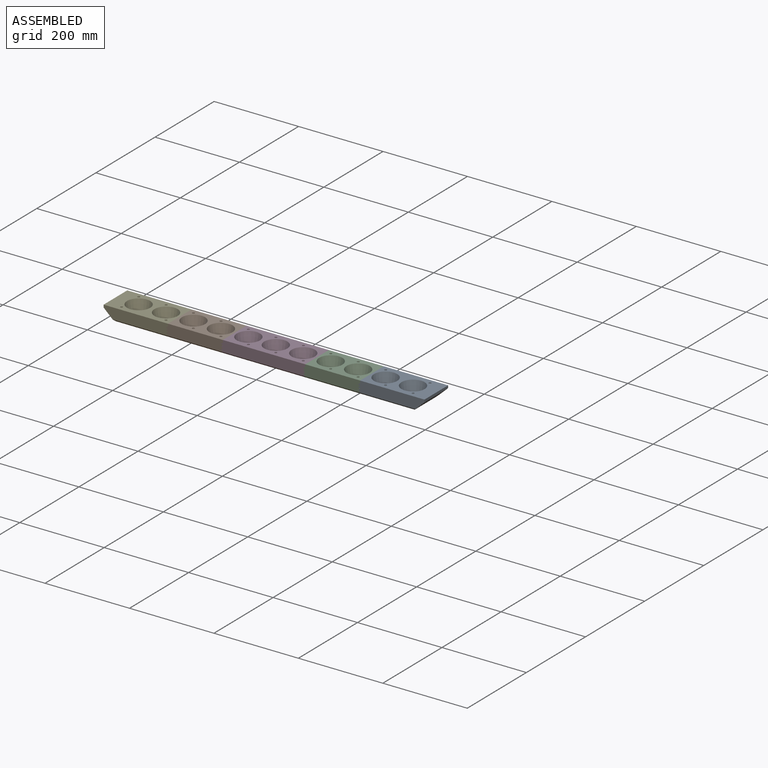
[diagram: assembled view]
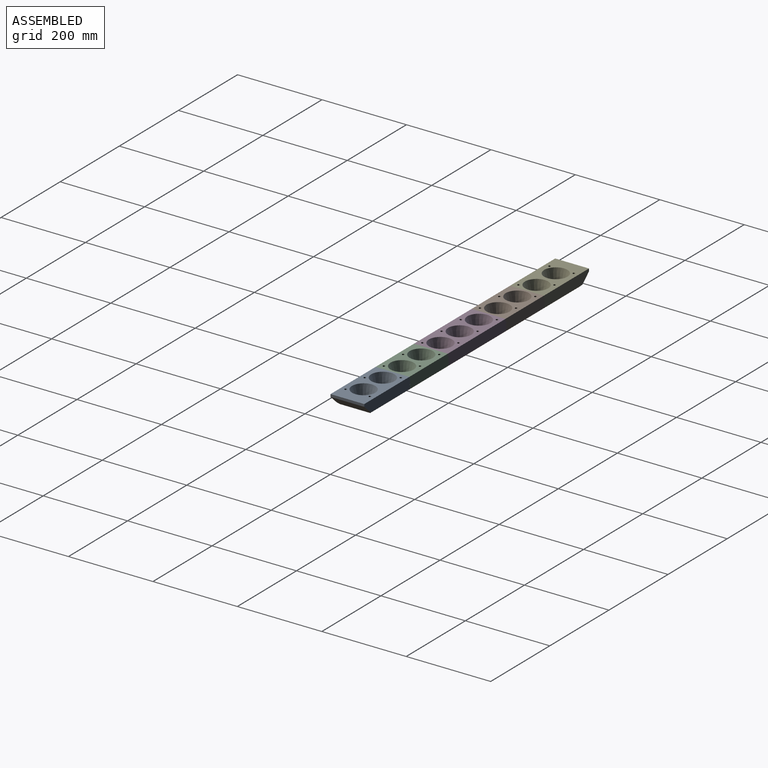
[diagram: assembled view, second angle]
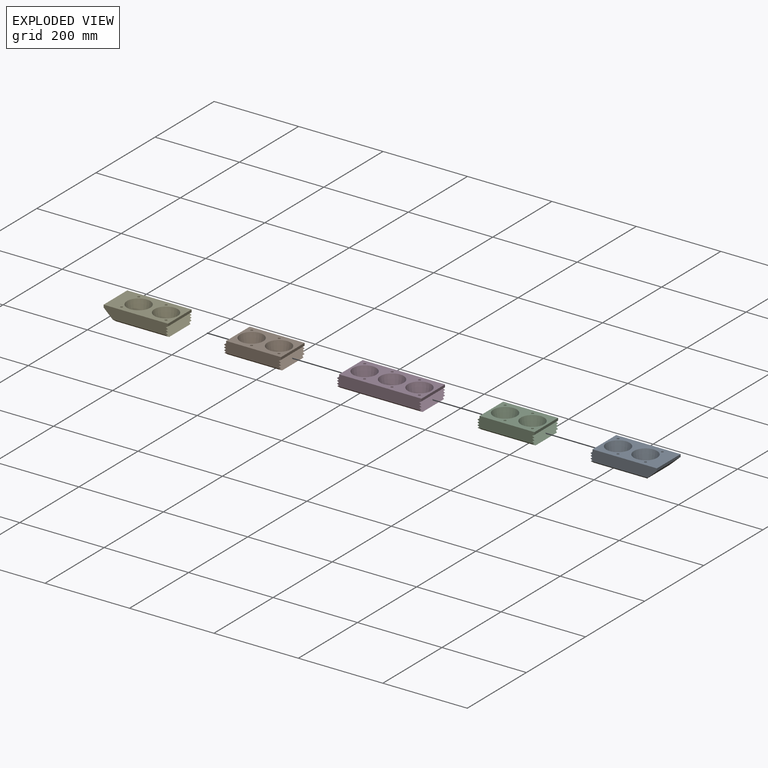
[diagram: exploded view]
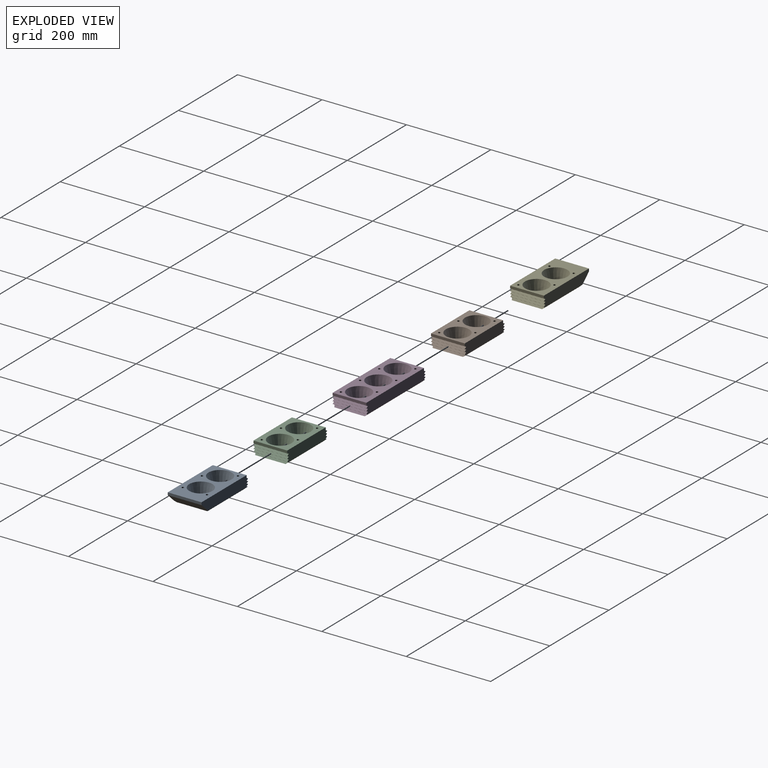
[diagram: exploded view, second angle]
ASSEMBLY  parts=5 mates=4
PART A: 34 faces, bbox 157.5x80x30 mm
  f0: plane 80x0.07mm, normal (1,0,0), area 5.8mm2, adj f3,f4,f29,f30
  f1: plane 80x0.07mm, normal (1,0,0), area 5.8mm2, adj f3,f4,f27,f28
  f2: plane 80x0.13mm, normal (1,0,0), area 10.8mm2, adj f3,f4,f25,f26
  f3: plane 157.5x26mm, normal (0,-1,0), area 3798.2mm2, adj f0,f1,f2,f5,f6,f7,f23,f24
  f4: plane 157.5x26mm, normal (0,1,0), area 3798.2mm2, adj f0,f1,f2,f5,f6,f7,f23,f24
  f5: plane 80x6mm, normal (1,0,0), area 480mm2, adj f3,f4,f6,f24
  f6: plane 152.5x80mm, normal (0,0,1), area 7353.3mm2, adj f3,f4,f5,f7,f9,f10,f11,f14
  f7: plane 80x6mm, normal (-1,0,0), area 480mm2, adj f3,f4,f6,f23
  f8: plane 126.75x72mm, normal (0,0,-1), area 6314.1mm2, adj f9,f10,f13,f16,f19,f22,f23,f31
  f9: cone r=20mm half-angle=14deg, axis (0,0,1), area 4614.5mm2, adj f6,f8
  f10: cone r=20mm half-angle=14deg, axis (0,0,1), area 4614.5mm2, adj f6,f8
  f11: cylinder r=2.75mm len=23mm, axis (0,0,-1), area 397.4mm2, adj f6,f12
  f12: plane 9.75x9.75mm, normal (0,0,-1), area 50.9mm2, adj f11,f13
  f13: cylinder r=4.88mm len=9.75mm, axis (0,0,-1), area 214.4mm2, adj f8,f12
  f14: cylinder r=2.75mm len=23mm, axis (0,0,-1), area 397.4mm2, adj f6,f15
  f15: plane 9.75x9.75mm, normal (0,0,-1), area 50.9mm2, adj f14,f16
  f16: cylinder r=4.88mm len=9.75mm, axis (0,0,-1), area 214.4mm2, adj f8,f15
  f17: cylinder r=2.75mm len=23mm, axis (0,0,-1), area 397.4mm2, adj f6,f18
  f18: plane 9.75x9.75mm, normal (0,0,-1), area 50.9mm2, adj f17,f19
  f19: cylinder r=4.88mm len=9.75mm, axis (0,0,-1), area 214.4mm2, adj f8,f18
  f20: cylinder r=2.75mm len=23mm, axis (0,0,-1), area 397.4mm2, adj f6,f21
  f21: plane 9.75x9.75mm, normal (0,0,-1), area 50.9mm2, adj f20,f22
  f22: cylinder r=4.88mm len=9.75mm, axis (0,0,-1), area 214.4mm2, adj f8,f21
  f23: plane 80x25.75mm, normal (-0.68,0,-0.73), area 2792.6mm2, adj f3,f4,f7,f8,f32,f33
  f24: plane 80x5mm, normal (0.53,0,0.85), area 470.6mm2, adj f3,f4,f5,f25
  f25: plane 80x5mm, normal (0.49,0,-0.87), area 459.7mm2, adj f2,f3,f4,f24
  f26: plane 80x5mm, normal (0.49,0,0.87), area 459.7mm2, adj f2,f3,f4,f27
  f27: plane 80x5mm, normal (0.51,0,-0.86), area 465mm2, adj f1,f3,f4,f26
  f28: plane 80x5mm, normal (0.51,0,0.86), area 465mm2, adj f1,f3,f4,f29
  f29: plane 80x5mm, normal (0.51,0,-0.86), area 465mm2, adj f0,f3,f4,f28
  f30: plane 80x5mm, normal (0.51,0,0.86), area 463.4mm2, adj f0,f3,f4,f31,f32,f33
  f31: plane 78.2x5mm, normal (0.53,0,-0.85), area 441.8mm2, adj f8,f30,f32,f33
  f32: plane 136.04x4mm, normal (0,0.71,-0.71), area 745.5mm2, adj f4,f8,f23,f30,f31
  f33: plane 136.04x4mm, normal (0,-0.71,-0.71), area 745.5mm2, adj f3,f8,f23,f30,f31
PART B: 38 faces, bbox 135x80x30 mm
  f0: plane 135x26mm, normal (0,-1,0), area 3380mm2, adj f2,f3,f20,f21,f22,f23,f24,f25
  f1: plane 135x26mm, normal (0,1,0), area 3380mm2, adj f2,f3,f20,f21,f22,f23,f24,f25
  f2: plane 80x6mm, normal (1,0,0), area 480mm2, adj f0,f1,f3,f35
  f3: plane 130x80mm, normal (0,0,1), area 5553.3mm2, adj f0,f1,f2,f5,f6,f7,f10,f13
  f4: plane 130x72mm, normal (0,0,-1), area 6548.1mm2, adj f5,f6,f9,f12,f15,f18,f19,f28
  f5: cone r=20mm half-angle=14deg, axis (0,0,1), area 4614.5mm2, adj f3,f4
  f6: cone r=20mm half-angle=14deg, axis (0,0,1), area 4614.5mm2, adj f3,f4
  f7: cylinder r=2.75mm len=23mm, axis (0,0,-1), area 397.4mm2, adj f3,f8
  f8: plane 9.75x9.75mm, normal (0,0,-1), area 50.9mm2, adj f7,f9
  f9: cylinder r=4.88mm len=9.75mm, axis (0,0,-1), area 214.4mm2, adj f4,f8
  f10: cylinder r=2.75mm len=23mm, axis (0,0,-1), area 397.4mm2, adj f3,f11
  f11: plane 9.75x9.75mm, normal (0,0,-1), area 50.9mm2, adj f10,f12
  f12: cylinder r=4.88mm len=9.75mm, axis (0,0,-1), area 214.4mm2, adj f4,f11
  f13: cylinder r=2.75mm len=23mm, axis (0,0,-1), area 397.4mm2, adj f3,f14
  f14: plane 9.75x9.75mm, normal (0,0,-1), area 50.9mm2, adj f13,f15
  f15: cylinder r=4.88mm len=9.75mm, axis (0,0,-1), area 214.4mm2, adj f4,f14
  f16: cylinder r=2.75mm len=23mm, axis (0,0,-1), area 397.4mm2, adj f3,f17
  f17: plane 9.75x9.75mm, normal (0,0,-1), area 50.9mm2, adj f16,f18
  f18: cylinder r=4.88mm len=9.75mm, axis (0,0,-1), area 214.4mm2, adj f4,f17
  f19: plane 78x5mm, normal (0.51,0,0.86), area 437.3mm2, adj f4,f20,f36,f37
  f20: plane 80x5mm, normal (0.51,0,-0.86), area 464.5mm2, adj f0,f1,f19,f23,f36,f37
  f21: plane 80x5mm, normal (0.51,0,0.86), area 466.5mm2, adj f0,f1,f22,f24
  f22: plane 80x5mm, normal (0.51,0,-0.86), area 466.5mm2, adj f0,f1,f21,f34
  f23: plane 80x5mm, normal (0.51,0,0.86), area 466.5mm2, adj f0,f1,f20,f24
  f24: plane 80x5mm, normal (0.51,0,-0.86), area 466.5mm2, adj f0,f1,f21,f23
  f25: plane 80x5mm, normal (-0.51,0,-0.86), area 466.5mm2, adj f0,f1,f26,f33
  f26: plane 80x5mm, normal (-0.51,0,0.86), area 466.5mm2, adj f0,f1,f25,f27
  f27: plane 80x6mm, normal (-1,0,0), area 480mm2, adj f0,f1,f3,f26
  f28: plane 78x5mm, normal (-0.51,0,-0.86), area 437.3mm2, adj f4,f29,f36,f37
  f29: plane 80x5mm, normal (-0.51,0,0.86), area 464.5mm2, adj f0,f1,f28,f30,f36,f37
  f30: plane 80x5mm, normal (-0.51,0,-0.86), area 466.5mm2, adj f0,f1,f29,f31
  f31: plane 80x5mm, normal (-0.51,0,0.86), area 466.5mm2, adj f0,f1,f30,f32
  f32: plane 80x5mm, normal (-0.51,0,-0.86), area 466.5mm2, adj f0,f1,f31,f33
  f33: plane 80x5mm, normal (-0.51,0,0.86), area 466.5mm2, adj f0,f1,f25,f32
  f34: plane 80x5mm, normal (0.51,0,0.86), area 466.5mm2, adj f0,f1,f22,f35
  f35: plane 80x5mm, normal (0.51,0,-0.86), area 466.5mm2, adj f0,f1,f2,f34
  f36: plane 135x4mm, normal (0,0.71,-0.71), area 735.4mm2, adj f1,f4,f19,f20,f28,f29
  f37: plane 135x4mm, normal (0,-0.71,-0.71), area 735.4mm2, adj f0,f4,f19,f20,f28,f29
PART C: same geometry as B
PART D: 45 faces, bbox 200x80x30 mm
  f0: plane 200x26mm, normal (0,-1,0), area 5070mm2, adj f2,f3,f27,f28,f29,f30,f31,f32
  f1: plane 200x26mm, normal (0,1,0), area 5070mm2, adj f2,f3,f27,f28,f29,f30,f31,f32
  f2: plane 80x6mm, normal (1,0,0), area 480mm2, adj f0,f1,f3,f42
  f3: plane 195x80mm, normal (0,0,1), area 8330mm2, adj f0,f1,f2,f5,f6,f7,f8,f11
  f4: plane 195x72mm, normal (0,0,-1), area 9822.1mm2, adj f5,f6,f7,f10,f13,f16,f19,f22
  f5: cone r=20mm half-angle=14deg, axis (0,0,1), area 4614.5mm2, adj f3,f4
  f6: cone r=20mm half-angle=14deg, axis (0,0,1), area 4614.5mm2, adj f3,f4
  f7: cone r=20mm half-angle=14deg, axis (0,0,1), area 4614.5mm2, adj f3,f4
  f8: cylinder r=2.75mm len=23mm, axis (0,0,-1), area 397.4mm2, adj f3,f9
  f9: plane 9.75x9.75mm, normal (0,0,-1), area 50.9mm2, adj f8,f10
  f10: cylinder r=4.88mm len=9.75mm, axis (0,0,-1), area 214.4mm2, adj f4,f9
  f11: cylinder r=2.75mm len=23mm, axis (0,0,-1), area 397.4mm2, adj f3,f12
  f12: plane 9.75x9.75mm, normal (0,0,-1), area 50.9mm2, adj f11,f13
  f13: cylinder r=4.88mm len=9.75mm, axis (0,0,-1), area 214.4mm2, adj f4,f12
  f14: cylinder r=2.75mm len=23mm, axis (0,0,-1), area 397.4mm2, adj f3,f15
  f15: plane 9.75x9.75mm, normal (0,0,-1), area 50.9mm2, adj f14,f16
  f16: cylinder r=4.88mm len=9.75mm, axis (0,0,-1), area 214.4mm2, adj f4,f15
  f17: cylinder r=2.75mm len=23mm, axis (0,0,-1), area 397.4mm2, adj f3,f18
  f18: plane 9.75x9.75mm, normal (0,0,-1), area 50.9mm2, adj f17,f19
  f19: cylinder r=4.88mm len=9.75mm, axis (0,0,-1), area 214.4mm2, adj f4,f18
  f20: cylinder r=2.75mm len=23mm, axis (0,0,-1), area 397.4mm2, adj f3,f21
  f21: plane 9.75x9.75mm, normal (0,0,-1), area 50.9mm2, adj f20,f22
  f22: cylinder r=4.88mm len=9.75mm, axis (0,0,-1), area 214.4mm2, adj f4,f21
  f23: cylinder r=2.75mm len=23mm, axis (0,0,-1), area 397.4mm2, adj f3,f24
  f24: plane 9.75x9.75mm, normal (0,0,-1), area 50.9mm2, adj f23,f25
  f25: cylinder r=4.88mm len=9.75mm, axis (0,0,-1), area 214.4mm2, adj f4,f24
  f26: plane 78x5mm, normal (0.51,0,0.86), area 437.3mm2, adj f4,f27,f43,f44
  f27: plane 80x5mm, normal (0.51,0,-0.86), area 464.5mm2, adj f0,f1,f26,f30,f43,f44
  f28: plane 80x5mm, normal (0.51,0,0.86), area 466.5mm2, adj f0,f1,f29,f31
  f29: plane 80x5mm, normal (0.51,0,-0.86), area 466.5mm2, adj f0,f1,f28,f41
  f30: plane 80x5mm, normal (0.51,0,0.86), area 466.5mm2, adj f0,f1,f27,f31
  f31: plane 80x5mm, normal (0.51,0,-0.86), area 466.5mm2, adj f0,f1,f28,f30
  f32: plane 80x5mm, normal (-0.51,0,-0.86), area 466.5mm2, adj f0,f1,f33,f40
  f33: plane 80x5mm, normal (-0.51,0,0.86), area 466.5mm2, adj f0,f1,f32,f34
  f34: plane 80x6mm, normal (-1,0,0), area 480mm2, adj f0,f1,f3,f33
  f35: plane 78x5mm, normal (-0.51,0,-0.86), area 437.3mm2, adj f4,f36,f43,f44
  f36: plane 80x5mm, normal (-0.51,0,0.86), area 464.5mm2, adj f0,f1,f35,f37,f43,f44
  f37: plane 80x5mm, normal (-0.51,0,-0.86), area 466.5mm2, adj f0,f1,f36,f38
  f38: plane 80x5mm, normal (-0.51,0,0.86), area 466.5mm2, adj f0,f1,f37,f39
  f39: plane 80x5mm, normal (-0.51,0,-0.86), area 466.5mm2, adj f0,f1,f38,f40
  f40: plane 80x5mm, normal (-0.51,0,0.86), area 466.5mm2, adj f0,f1,f32,f39
  f41: plane 80x5mm, normal (0.51,0,0.86), area 466.5mm2, adj f0,f1,f29,f42
  f42: plane 80x5mm, normal (0.51,0,-0.86), area 466.5mm2, adj f0,f1,f2,f41
  f43: plane 200x4mm, normal (0,0.71,-0.71), area 1103.1mm2, adj f1,f4,f26,f27,f35,f36
  f44: plane 200x4mm, normal (0,-0.71,-0.71), area 1103.1mm2, adj f0,f4,f26,f27,f35,f36
PART E: 31 faces, bbox 152.5x80x30 mm
  f0: plane 152.5x26mm, normal (0,-1,0), area 3702.1mm2, adj f2,f3,f4,f21,f22,f23,f24,f25
  f1: plane 152.5x26mm, normal (0,1,0), area 3702.1mm2, adj f2,f3,f4,f21,f22,f23,f24,f25
  f2: plane 80x6mm, normal (1,0,0), area 480mm2, adj f0,f1,f3,f28
  f3: plane 152.5x80mm, normal (0,0,1), area 7353.3mm2, adj f0,f1,f2,f4,f6,f7,f8,f11
  f4: plane 80x6mm, normal (-1,0,0), area 480mm2, adj f0,f1,f3,f26
  f5: plane 126.75x72mm, normal (0,0,-1), area 6314.1mm2, adj f6,f7,f10,f13,f16,f19,f20,f26
  f6: cone r=20mm half-angle=14deg, axis (0,0,1), area 4614.5mm2, adj f3,f5
  f7: cone r=20mm half-angle=14deg, axis (0,0,1), area 4614.5mm2, adj f3,f5
  f8: cylinder r=2.75mm len=23mm, axis (0,0,-1), area 397.4mm2, adj f3,f9
  f9: plane 9.75x9.75mm, normal (0,0,-1), area 50.9mm2, adj f8,f10
  f10: cylinder r=4.88mm len=9.75mm, axis (0,0,-1), area 214.4mm2, adj f5,f9
  f11: cylinder r=2.75mm len=23mm, axis (0,0,-1), area 397.4mm2, adj f3,f12
  f12: plane 9.75x9.75mm, normal (0,0,-1), area 50.9mm2, adj f11,f13
  f13: cylinder r=4.88mm len=9.75mm, axis (0,0,-1), area 214.4mm2, adj f5,f12
  f14: cylinder r=2.75mm len=23mm, axis (0,0,-1), area 397.4mm2, adj f3,f15
  f15: plane 9.75x9.75mm, normal (0,0,-1), area 50.9mm2, adj f14,f16
  f16: cylinder r=4.88mm len=9.75mm, axis (0,0,-1), area 214.4mm2, adj f5,f15
  f17: cylinder r=2.75mm len=23mm, axis (0,0,-1), area 397.4mm2, adj f3,f18
  f18: plane 9.75x9.75mm, normal (0,0,-1), area 50.9mm2, adj f17,f19
  f19: cylinder r=4.88mm len=9.75mm, axis (0,0,-1), area 214.4mm2, adj f5,f18
  f20: plane 78x5mm, normal (0.51,0,0.86), area 437.3mm2, adj f5,f21,f29,f30
  f21: plane 80x5mm, normal (0.51,0,-0.86), area 464.5mm2, adj f0,f1,f20,f24,f29,f30
  f22: plane 80x5mm, normal (0.51,0,0.86), area 466.5mm2, adj f0,f1,f23,f25
  f23: plane 80x5mm, normal (0.51,0,-0.86), area 466.5mm2, adj f0,f1,f22,f27
  f24: plane 80x5mm, normal (0.51,0,0.86), area 466.5mm2, adj f0,f1,f21,f25
  f25: plane 80x5mm, normal (0.51,0,-0.86), area 466.5mm2, adj f0,f1,f22,f24
  f26: plane 80x25.75mm, normal (-0.68,0,-0.73), area 2792.6mm2, adj f0,f1,f4,f5,f29,f30
  f27: plane 80x5mm, normal (0.51,0,0.86), area 466.5mm2, adj f0,f1,f23,f28
  f28: plane 80x5mm, normal (0.51,0,-0.86), area 466.5mm2, adj f0,f1,f2,f27
  f29: plane 131.04x4mm, normal (0,0.71,-0.71), area 712.6mm2, adj f1,f5,f20,f21,f26
  f30: plane 131.04x4mm, normal (0,-0.71,-0.71), area 712.6mm2, adj f0,f5,f20,f21,f26
PLACE A rot(axis=(0,0,1),180deg) t=(294.23,79.9,-63.9)mm
PLACE B t=(-183.27,79.9,-63.9)mm
PLACE C t=(141.73,79.9,-63.9)mm
PLACE D t=(-20.77,79.9,-63.9)mm
PLACE E t=(-313.27,79.9,-63.9)mm
MATE fastened E.f2 <-> B.f27  axis (1,0,0) through (-237.02,79.9,-51.9)mm
MATE fastened D.f34 <-> B.f2  axis (-1,0,0) through (-107.02,79.9,-51.9)mm
MATE fastened C.f2 <-> A.f5  axis (1,0,0) through (217.98,79.9,-51.9)mm
MATE fastened D.f2 <-> C.f27  axis (1,0,0) through (87.98,79.9,-51.9)mm
